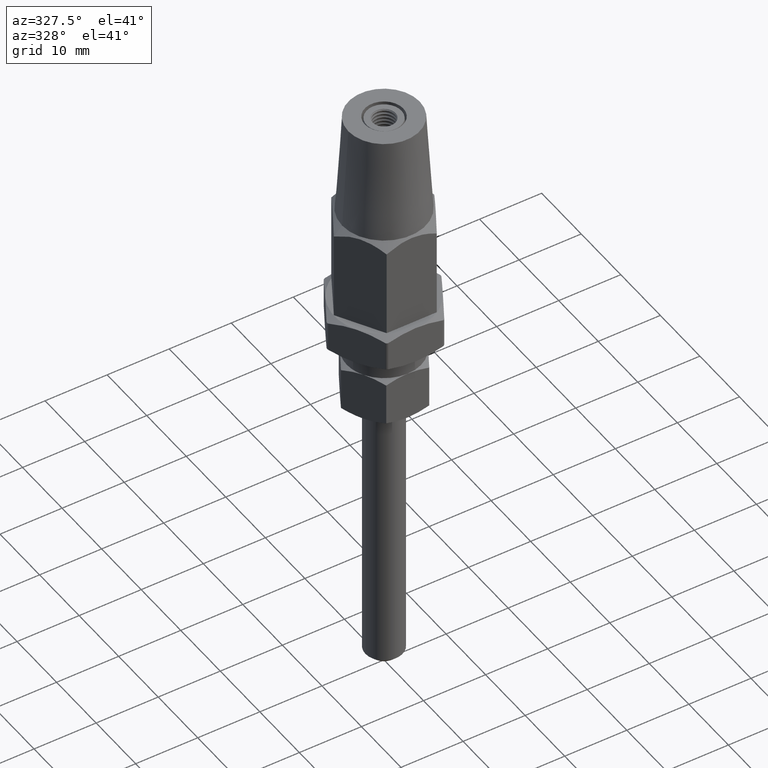
[diagram: clean part render]
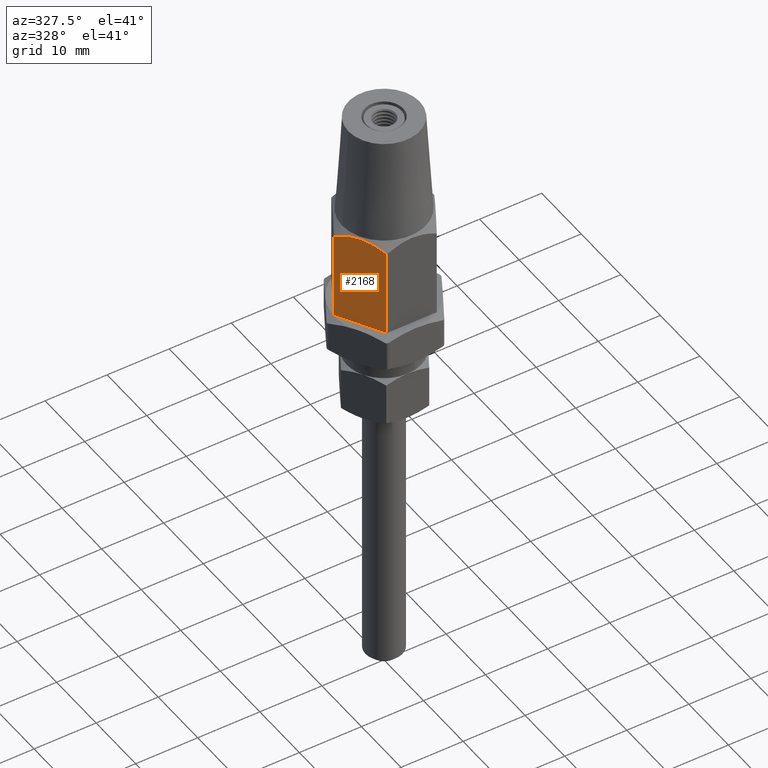
[diagram: same view with one face highlighted and labeled with its STEP entity id]
A machine part, auxiliary view. The second image highlights one B-rep face of the part: STEP entity #2168.
In plain terms, the highlighted planar face has unit normal (0.866, 0.5, 0).
Its self-contained STEP definition (entity closure, byte-faithful):
#498 = EDGE_CURVE ( 'NONE', #2319, #16054, #7498, .T. ) ;
#1512 = LINE ( 'NONE', #13819, #10100 ) ;
#1802 = DIRECTION ( 'NONE',  ( -0.5000000000000001100, 0.8660254037844386000, 0.0000000000000000000 ) ) ;
#2168 = ADVANCED_FACE ( 'NONE', ( #17461 ), #8621, .F. ) ;
#2319 = VERTEX_POINT ( 'NONE', #6011 ) ;
#2587 = CARTESIAN_POINT ( 'NONE',  ( -7.767134998403882700, -0.5469275535180731000, 14.48286500159613300 ) ) ;
#2641 = CARTESIAN_POINT ( 'NONE',  ( -8.082903768654762900, 1.537748083177683700E-016, 14.16709623134525100 ) ) ;
#2931 = DIRECTION ( 'NONE',  ( 0.5000000000000001100, -0.8660254037844386000, 0.0000000000000000000 ) ) ;
#4021 = CARTESIAN_POINT ( 'NONE',  ( -4.686123944019263900, -5.883395238393587700, 14.75707473685712200 ) ) ;
#4891 = EDGE_CURVE ( 'NONE', #14785, #16458, #16018, .T. ) ;
#5272 = CARTESIAN_POINT ( 'NONE',  ( -5.716808688986275500, -4.098196893524549200, 15.25148396273105800 ) ) ;
#5385 = CARTESIAN_POINT ( 'NONE',  ( -4.041451884327382300, -7.000000000000000000, 14.16709623134525300 ) ) ;
#5445 = CARTESIAN_POINT ( 'NONE',  ( -5.370024455733908300, -4.698844804781471000, 15.14464026218349700 ) ) ;
#5944 = ORIENTED_EDGE ( 'NONE', *, *, #4891, .T. ) ;
#5990 = DIRECTION ( 'NONE',  ( 0.8660254037844386000, 0.5000000000000001100, -0.0000000000000000000 ) ) ;
#6011 = CARTESIAN_POINT ( 'NONE',  ( -8.082903768654762900, 1.537748083177683700E-016, 14.16709623134525100 ) ) ;
#7008 = DIRECTION ( 'NONE',  ( -0.0000000000000000000, -0.0000000000000000000, -1.000000000000000000 ) ) ;
#7246 = ORIENTED_EDGE ( 'NONE', *, *, #8818, .F. ) ;
#7498 = B_SPLINE_CURVE_WITH_KNOTS ( 'NONE', 3,
 ( #2641, #2587, #8004, #12229, #16440, #17574, #17684, #5272, #5445, #4021, #13616, #5385 ),
 .UNSPECIFIED., .F., .F.,
 ( 4, 2, 2, 2, 2, 4 ),
 ( 2.544316211737420600E-007, 0.002087583538114675700, 0.003131248091361426300, 0.004174912644608177000, 0.006262241751101678200, 0.008349570857595179500 ),
 .UNSPECIFIED. ) ;
#7687 = ORIENTED_EDGE ( 'NONE', *, *, #11489, .T. ) ;
#7938 = CARTESIAN_POINT ( 'NONE',  ( -8.082903768654762900, 6.998943670725841100E-018, 0.0000000000000000000 ) ) ;
#8004 = CARTESIAN_POINT ( 'NONE',  ( -7.444243660993558700, -1.106191755236613000, 14.75134614935850900 ) ) ;
#8317 = VECTOR ( 'NONE', #9569, 1000.000000000000000 ) ;
#8495 = AXIS2_PLACEMENT_3D ( 'NONE', #10066, #5990, #1802 ) ;
#8621 = PLANE ( 'NONE',  #8495 ) ;
#8739 = VECTOR ( 'NONE', #2931, 1000.000000000000100 ) ;
#8818 = EDGE_CURVE ( 'NONE', #16054, #16458, #10508, .T. ) ;
#9569 = DIRECTION ( 'NONE',  ( -0.0000000000000000000, -0.0000000000000000000, -1.000000000000000000 ) ) ;
#10066 = CARTESIAN_POINT ( 'NONE',  ( -8.082903768654762900, 6.998943670725841100E-018, 15.50000000000000000 ) ) ;
#10100 = VECTOR ( 'NONE', #7008, 1000.000000000000000 ) ;
#10508 = LINE ( 'NONE', #14581, #8317 ) ;
#10953 = CARTESIAN_POINT ( 'NONE',  ( -4.041451884327382300, -7.000000000000000000, 14.16709623134525300 ) ) ;
#11141 = CARTESIAN_POINT ( 'NONE',  ( -8.082903768654762900, 6.998943670725841100E-018, 0.0000000000000000000 ) ) ;
#11489 = EDGE_CURVE ( 'NONE', #2319, #14785, #1512, .T. ) ;
#12229 = CARTESIAN_POINT ( 'NONE',  ( -6.942582451207008500, -1.975094458773389200, 15.03905029590964100 ) ) ;
#12506 = EDGE_LOOP ( 'NONE', ( #14947, #7687, #5944, #7246 ) ) ;
#13616 = CARTESIAN_POINT ( 'NONE',  ( -4.359080132198335500, -6.449851736768423800, 14.48472447921632700 ) ) ;
#13819 = CARTESIAN_POINT ( 'NONE',  ( -8.082903768654762900, 6.998943670725841100E-018, 15.50000000000000000 ) ) ;
#14581 = CARTESIAN_POINT ( 'NONE',  ( -4.041451884327382300, -7.000000000000000000, 15.50000000000000000 ) ) ;
#14785 = VERTEX_POINT ( 'NONE', #7938 ) ;
#14947 = ORIENTED_EDGE ( 'NONE', *, *, #498, .F. ) ;
#16018 = LINE ( 'NONE', #11141, #8739 ) ;
#16054 = VERTEX_POINT ( 'NONE', #10953 ) ;
#16440 = CARTESIAN_POINT ( 'NONE',  ( -6.772444227986312600, -2.269782505701132300, 15.11557990305788800 ) ) ;
#16447 = CARTESIAN_POINT ( 'NONE',  ( -4.041451884327382300, -7.000000000000000000, 0.0000000000000000000 ) ) ;
#16458 = VERTEX_POINT ( 'NONE', #16447 ) ;
#17461 = FACE_OUTER_BOUND ( 'NONE', #12506, .T. ) ;
#17574 = CARTESIAN_POINT ( 'NONE',  ( -6.424974264048295900, -2.871618137345900200, 15.22088044662090000 ) ) ;
#17684 = CARTESIAN_POINT ( 'NONE',  ( -6.246021194140709600, -3.181573946596262500, 15.24923430079596000 ) ) ;